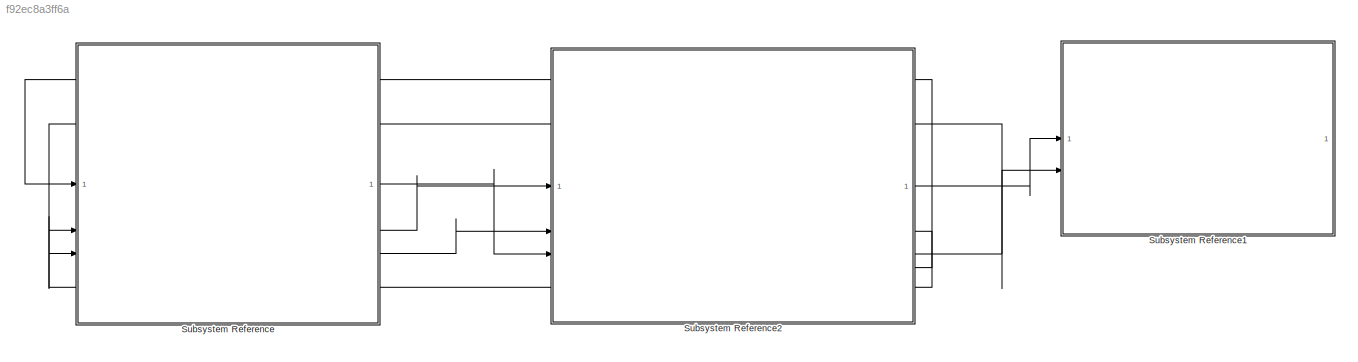
MODEL slx_f92ec8a3ff6a
KIND model
CONFIG AbsTol = auto
CONFIG EnableMultiTasking = off
CONFIG FixedStep = 0.0001
CONFIG MaxStep = auto
CONFIG MinStep = auto
CONFIG RelTol = 1e-3
CONFIG SampleTimeConstraint = Unconstrained
CONFIG SolverName = ode8
CONFIG StartTime = 0.0
CONFIG StopTime = inf
BLOCK [SubSystem] Subsystem Reference
  PortSchema = {"entries":[{"content":{"sides":[{"content":{"connectorIds":["In1","In3","In2"]},"type":"ConnectorPlacement.EquallySpacedRectSide","uuid":"c5f81107-2054-40b3-845b-e3929294ca92"},{"content":{"connectorIds":["Out4","Out2","Out3","Out1"],"side":"RIGHT"},"type":"ConnectorPlacement.EquallySpacedRectSide","uuid":"ff68c608-76be-4e7e-95d2-7461cd4d77fb"},{"content":{"side":"TOP"},"type":"ConnectorPlacement...<+255ch>
  ReferencedSubsystem = Tester_SS
BLOCK [SubSystem] Subsystem Reference1
  ReferencedSubsystem = MC_CAN
BLOCK [SubSystem] Subsystem Reference2
  PortSchema = {"entries":[{"content":{"sides":[{"content":{"connectorIds":["In1","In2","In3"]},"type":"ConnectorPlacement.EquallySpacedRectSide","uuid":"c5f81107-2054-40b3-845b-e3929294ca92"},{"content":{"connectorIds":["Out1","Out3","Out4","Out2"],"side":"RIGHT"},"type":"ConnectorPlacement.EquallySpacedRectSide","uuid":"ff68c608-76be-4e7e-95d2-7461cd4d77fb"},{"content":{"side":"TOP"},"type":"ConnectorPlacement...<+255ch>
  ReferencedSubsystem = VCU_Subsystem
LINE Subsystem Reference2:1 -> Subsystem Reference1:1
LINE Subsystem Reference2:2 -> Subsystem Reference:2
NET Subsystem Reference2:3 -> Subsystem Reference1:2, Subsystem Reference:3
LINE Subsystem Reference2:4 -> Subsystem Reference:1
LINE Subsystem Reference:1 -> Subsystem Reference2:3
LINE Subsystem Reference:2 -> Subsystem Reference2:1
LINE Subsystem Reference:3 -> Subsystem Reference2:2
note: NET lines group one-source signal fan-out (src -> all destinations, sorted); 1:1 wires keep LINE
